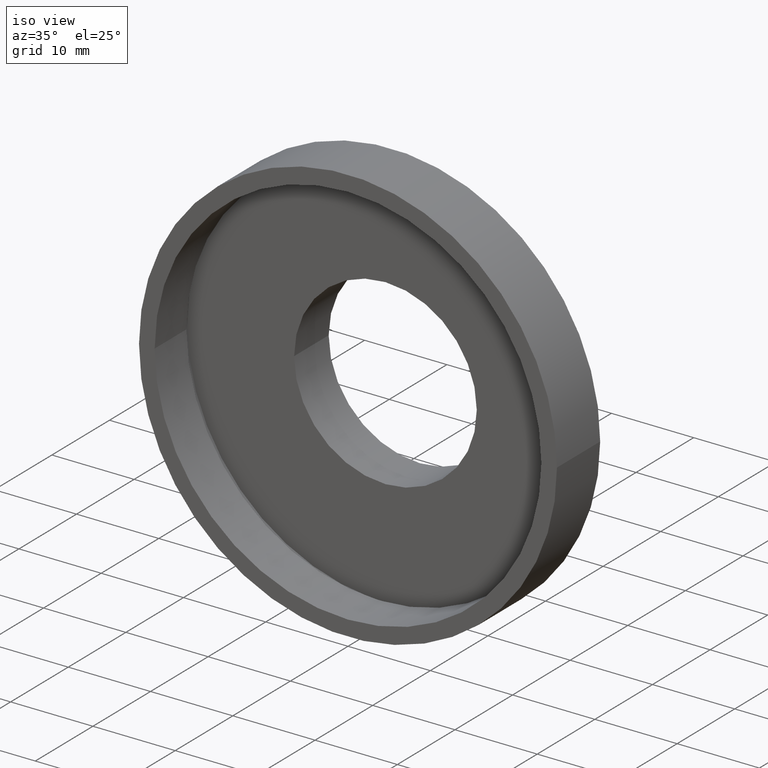
[diagram: clean part render]
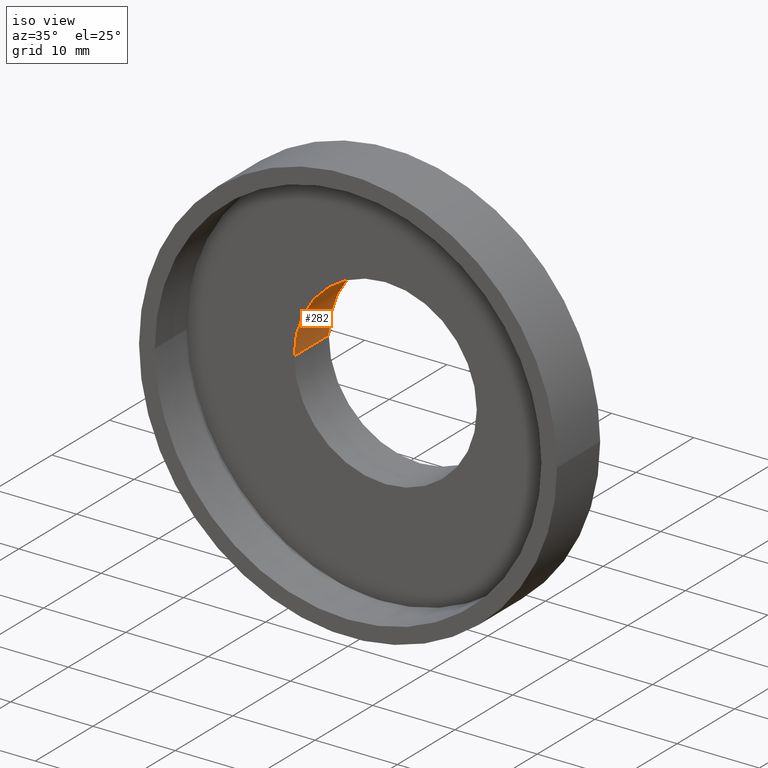
[diagram: same view with one face highlighted and labeled with its STEP entity id]
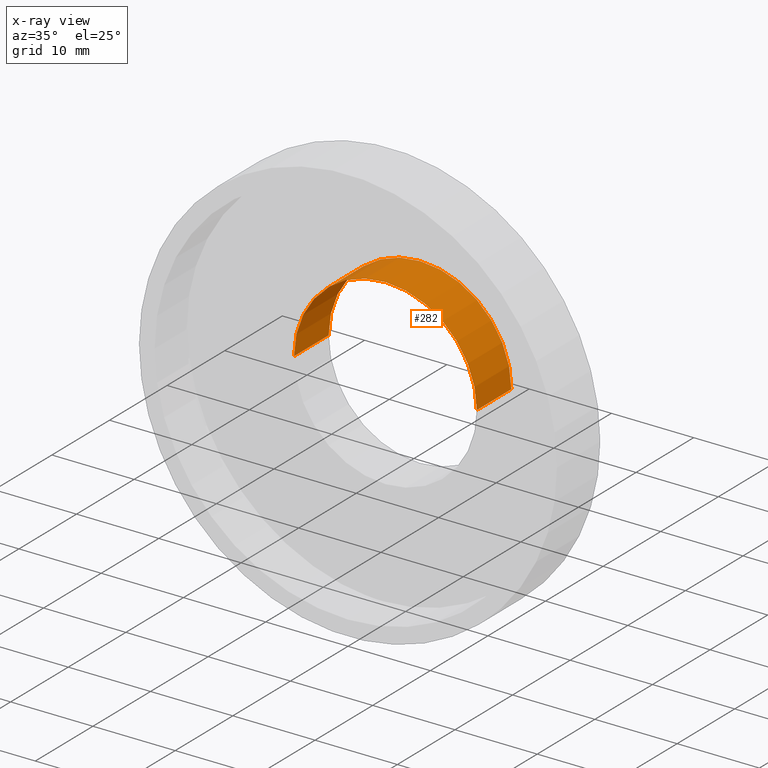
[diagram: x-ray of the same camera — body ghosted, the highlighted face saturated]
A machine part, iso view. The second image highlights one B-rep face of the part: STEP entity #282.
The next image is the same camera in x-ray: the body ghosted, the highlighted face saturated — about 2% of this face is hidden behind the body in this view.
In plain terms, the highlighted cylindrical surface (partial cylindrical patch) has radius 11.1 mm, axis along (-0, 1, -0).
Its self-contained STEP definition (entity closure, byte-faithful):
#1 = LINE ( 'NONE', #207, #258 ) ;
#2 = EDGE_CURVE ( 'NONE', #204, #66, #220, .T. ) ;
#23 = DIRECTION ( 'NONE',  ( -1.224646799147351000E-016, 1.000000000000000000, -0.0000000000000000000 ) ) ;
#26 = CARTESIAN_POINT ( 'NONE',  ( 0.0000000000000000000, 16.88601823708207700, 0.0000000000000000000 ) ) ;
#29 = CARTESIAN_POINT ( 'NONE',  ( 11.10000000000000100, 16.88601823708207700, 1.359357947053562400E-015 ) ) ;
#42 = AXIS2_PLACEMENT_3D ( 'NONE', #605, #81, #381 ) ;
#60 = DIRECTION ( 'NONE',  ( -1.224646799147351000E-016, 1.000000000000000000, -0.0000000000000000000 ) ) ;
#66 = VERTEX_POINT ( 'NONE', #231 ) ;
#69 = AXIS2_PLACEMENT_3D ( 'NONE', #528, #523, #478 ) ;
#76 = CARTESIAN_POINT ( 'NONE',  ( -11.10000000000000100, 12.49999999999999500, 0.0000000000000000000 ) ) ;
#81 = DIRECTION ( 'NONE',  ( -1.224646799147351000E-016, 1.000000000000000000, -0.0000000000000000000 ) ) ;
#84 = ORIENTED_EDGE ( 'NONE', *, *, #482, .T. ) ;
#136 = ORIENTED_EDGE ( 'NONE', *, *, #2, .F. ) ;
#190 = ORIENTED_EDGE ( 'NONE', *, *, #553, .F. ) ;
#204 = VERTEX_POINT ( 'NONE', #295 ) ;
#207 = CARTESIAN_POINT ( 'NONE',  ( -11.10000000000000100, 16.88601823708207700, 0.0000000000000000000 ) ) ;
#220 = LINE ( 'NONE', #29, #230 ) ;
#230 = VECTOR ( 'NONE', #335, 1000.000000000000000 ) ;
#231 = CARTESIAN_POINT ( 'NONE',  ( 11.10000000000000100, 12.49999999999999800, 1.359357947053562400E-015 ) ) ;
#258 = VECTOR ( 'NONE', #60, 1000.000000000000000 ) ;
#262 = CIRCLE ( 'NONE', #42, 11.10000000000000100 ) ;
#264 = VERTEX_POINT ( 'NONE', #76 ) ;
#271 = CYLINDRICAL_SURFACE ( 'NONE', #356, 11.10000000000000100 ) ;
#282 = ADVANCED_FACE ( 'NONE', ( #424 ), #271, .F. ) ;
#295 = CARTESIAN_POINT ( 'NONE',  ( 11.10000000000000100, 6.499999999999999100, 1.359357947053562400E-015 ) ) ;
#316 = ORIENTED_EDGE ( 'NONE', *, *, #595, .T. ) ;
#335 = DIRECTION ( 'NONE',  ( -1.224646799147351000E-016, 1.000000000000000000, -0.0000000000000000000 ) ) ;
#347 = DIRECTION ( 'NONE',  ( -1.000000000000000000, 0.0000000000000000000, 0.0000000000000000000 ) ) ;
#356 = AXIS2_PLACEMENT_3D ( 'NONE', #26, #23, #347 ) ;
#381 = DIRECTION ( 'NONE',  ( -1.000000000000000000, -1.562813942321447500E-016, 0.0000000000000000000 ) ) ;
#424 = FACE_OUTER_BOUND ( 'NONE', #506, .T. ) ;
#478 = DIRECTION ( 'NONE',  ( -1.000000000000000000, -1.562813942321447800E-016, 0.0000000000000000000 ) ) ;
#482 = EDGE_CURVE ( 'NONE', #511, #264, #1, .T. ) ;
#506 = EDGE_LOOP ( 'NONE', ( #136, #190, #84, #316 ) ) ;
#511 = VERTEX_POINT ( 'NONE', #593 ) ;
#523 = DIRECTION ( 'NONE',  ( -1.224646799147351000E-016, 1.000000000000000000, -0.0000000000000000000 ) ) ;
#528 = CARTESIAN_POINT ( 'NONE',  ( 1.271920398992858000E-015, 6.499999999999997300, 0.0000000000000000000 ) ) ;
#539 = CIRCLE ( 'NONE', #69, 11.10000000000000000 ) ;
#553 = EDGE_CURVE ( 'NONE', #511, #204, #539, .T. ) ;
#593 = CARTESIAN_POINT ( 'NONE',  ( -11.09999999999999800, 6.499999999999995600, 0.0000000000000000000 ) ) ;
#595 = EDGE_CURVE ( 'NONE', #264, #66, #262, .T. ) ;
#605 = CARTESIAN_POINT ( 'NONE',  ( 5.371323195044474300E-016, 12.49999999999999600, 0.0000000000000000000 ) ) ;